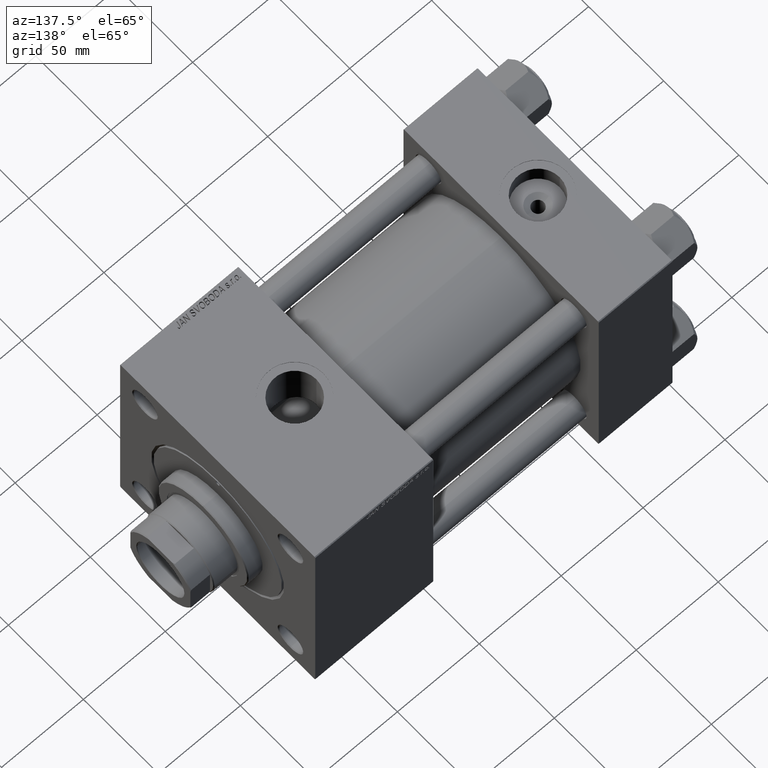
[diagram: clean part render]
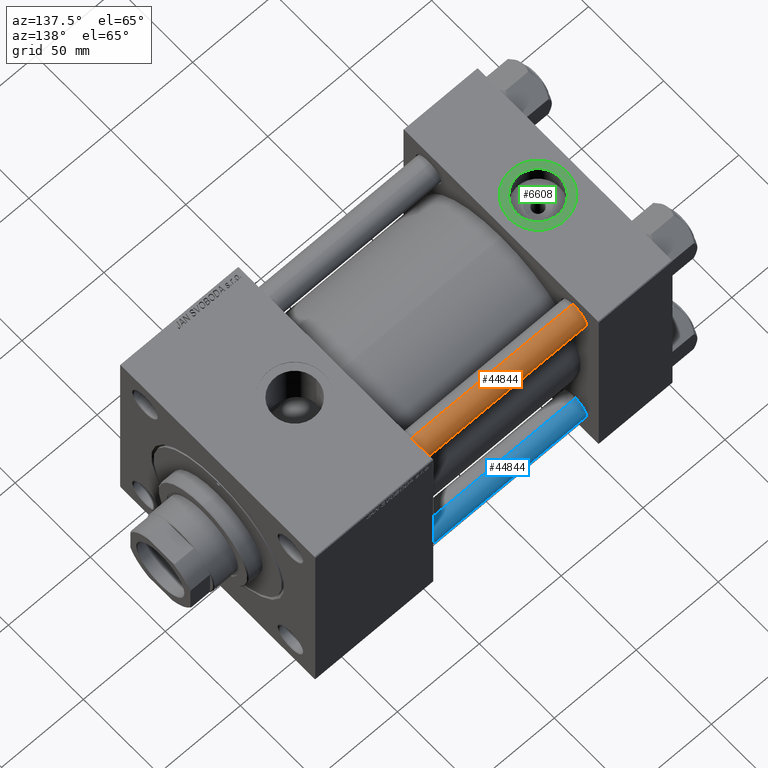
[diagram: same view with three faces highlighted in distinct colors, each labeled with its STEP entity id]
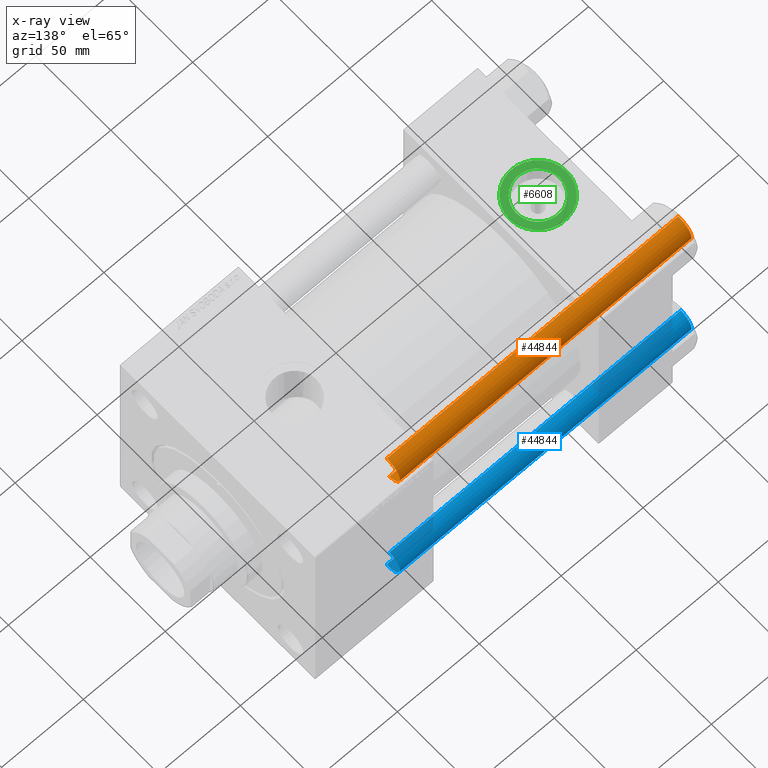
[diagram: x-ray of the same camera — body ghosted, the three highlighted faces saturated]
A machine part, auxiliary view with three faces highlighted in distinct colors.
The next image is the same camera in x-ray (body ghosted, the three faces saturated) — at least one of them is partly hidden behind the body in this view.
Their STEP definitions:

[orange] entity #44844 — the highlighted cylindrical surface (edge-blend (fillet) strip) has radius 8 mm, axis along (-1, 0, 0).
#3326 = DIRECTION ( 'NONE',  ( -0.000000000000000000, -0.000000000000000000, -1.000000000000000000 ) ) ;
#3579 = DIRECTION ( 'NONE',  ( -1.000000000000000000, 0.000000000000000000, 0.000000000000000000 ) ) ;
#6770 = CARTESIAN_POINT ( 'NONE',  ( -8.000000000000000000, 0.000000000000000000, 179.0000000000000000 ) ) ;
#7080 = VERTEX_POINT ( 'NONE', #41293 ) ;
#8941 = VERTEX_POINT ( 'NONE', #50670 ) ;
#10639 = LINE ( 'NONE', #6770, #21635 ) ;
#10958 = CIRCLE ( 'NONE', #18324, 8.000000000000000000 ) ;
#11604 = EDGE_CURVE ( 'NONE', #16857, #7080, #10958, .T. ) ;
#12505 = DIRECTION ( 'NONE',  ( -0.000000000000000000, -0.000000000000000000, 1.000000000000000000 ) ) ;
#12895 = CARTESIAN_POINT ( 'NONE',  ( 8.000000000000000000, 9.797174393178823685E-16, 179.0000000000000000 ) ) ;
#16121 = VECTOR ( 'NONE', #16494, 1000.000000000000000 ) ;
#16494 = DIRECTION ( 'NONE',  ( -0.000000000000000000, -0.000000000000000000, -1.000000000000000000 ) ) ;
#16857 = VERTEX_POINT ( 'NONE', #45170 ) ;
#18324 = AXIS2_PLACEMENT_3D ( 'NONE', #44282, #28587, #40162 ) ;
#18875 = EDGE_CURVE ( 'NONE', #8941, #27733, #49738, .T. ) ;
#19586 = EDGE_CURVE ( 'NONE', #7080, #8941, #48102, .T. ) ;
#21635 = VECTOR ( 'NONE', #38120, 1000.000000000000000 ) ;
#22993 = EDGE_LOOP ( 'NONE', ( #48178, #38166, #39535, #31892 ) ) ;
#23092 = FACE_OUTER_BOUND ( 'NONE', #22993, .T. ) ;
#27660 = DIRECTION ( 'NONE',  ( 1.000000000000000000, 0.000000000000000000, 0.000000000000000000 ) ) ;
#27733 = VERTEX_POINT ( 'NONE', #32492 ) ;
#28587 = DIRECTION ( 'NONE',  ( 0.000000000000000000, 0.000000000000000000, -1.000000000000000000 ) ) ;
#31372 = EDGE_CURVE ( 'NONE', #16857, #27733, #10639, .T. ) ;
#31892 = ORIENTED_EDGE ( 'NONE', *, *, #31372, .F. ) ;
#32492 = CARTESIAN_POINT ( 'NONE',  ( -8.000000000000000000, 0.000000000000000000, 0.5000000000001392220 ) ) ;
#38120 = DIRECTION ( 'NONE',  ( -0.000000000000000000, -0.000000000000000000, -1.000000000000000000 ) ) ;
#38166 = ORIENTED_EDGE ( 'NONE', *, *, #19586, .T. ) ;
#39285 = CYLINDRICAL_SURFACE ( 'NONE', #41655, 8.000000000000000000 ) ;
#39535 = ORIENTED_EDGE ( 'NONE', *, *, #18875, .T. ) ;
#40162 = DIRECTION ( 'NONE',  ( 1.000000000000000000, 0.000000000000000000, 0.000000000000000000 ) ) ;
#41293 = CARTESIAN_POINT ( 'NONE',  ( 8.000000000000000000, 9.797174393178823685E-16, 178.5000000000001137 ) ) ;
#41655 = AXIS2_PLACEMENT_3D ( 'NONE', #47261, #3326, #3579 ) ;
#44282 = CARTESIAN_POINT ( 'NONE',  ( 0.000000000000000000, 0.000000000000000000, 178.5000000000001137 ) ) ;
#44817 = AXIS2_PLACEMENT_3D ( 'NONE', #47718, #12505, #27660 ) ;
#44844 = ADVANCED_FACE ( 'NONE', ( #23092 ), #39285, .T. ) ;
#45170 = CARTESIAN_POINT ( 'NONE',  ( -8.000000000000000000, 0.000000000000000000, 178.5000000000001137 ) ) ;
#47261 = CARTESIAN_POINT ( 'NONE',  ( 0.000000000000000000, 0.000000000000000000, 179.0000000000000000 ) ) ;
#47718 = CARTESIAN_POINT ( 'NONE',  ( 0.000000000000000000, 0.000000000000000000, 0.5000000000001392220 ) ) ;
#48102 = LINE ( 'NONE', #12895, #16121 ) ;
#48178 = ORIENTED_EDGE ( 'NONE', *, *, #11604, .T. ) ;
#49738 = CIRCLE ( 'NONE', #44817, 8.000000000000000000 ) ;
#50670 = CARTESIAN_POINT ( 'NONE',  ( 8.000000000000000000, 9.797174393178823685E-16, 0.5000000000001392220 ) ) ;

[blue] entity #44844 — the highlighted cylindrical surface (edge-blend (fillet) strip) has radius 8 mm, axis along (1, -0, 0).
#3326 = DIRECTION ( 'NONE',  ( -0.000000000000000000, -0.000000000000000000, -1.000000000000000000 ) ) ;
#3579 = DIRECTION ( 'NONE',  ( -1.000000000000000000, 0.000000000000000000, 0.000000000000000000 ) ) ;
#6770 = CARTESIAN_POINT ( 'NONE',  ( -8.000000000000000000, 0.000000000000000000, 179.0000000000000000 ) ) ;
#7080 = VERTEX_POINT ( 'NONE', #41293 ) ;
#8941 = VERTEX_POINT ( 'NONE', #50670 ) ;
#10639 = LINE ( 'NONE', #6770, #21635 ) ;
#10958 = CIRCLE ( 'NONE', #18324, 8.000000000000000000 ) ;
#11604 = EDGE_CURVE ( 'NONE', #16857, #7080, #10958, .T. ) ;
#12505 = DIRECTION ( 'NONE',  ( -0.000000000000000000, -0.000000000000000000, 1.000000000000000000 ) ) ;
#12895 = CARTESIAN_POINT ( 'NONE',  ( 8.000000000000000000, 9.797174393178823685E-16, 179.0000000000000000 ) ) ;
#16121 = VECTOR ( 'NONE', #16494, 1000.000000000000000 ) ;
#16494 = DIRECTION ( 'NONE',  ( -0.000000000000000000, -0.000000000000000000, -1.000000000000000000 ) ) ;
#16857 = VERTEX_POINT ( 'NONE', #45170 ) ;
#18324 = AXIS2_PLACEMENT_3D ( 'NONE', #44282, #28587, #40162 ) ;
#18875 = EDGE_CURVE ( 'NONE', #8941, #27733, #49738, .T. ) ;
#19586 = EDGE_CURVE ( 'NONE', #7080, #8941, #48102, .T. ) ;
#21635 = VECTOR ( 'NONE', #38120, 1000.000000000000000 ) ;
#22993 = EDGE_LOOP ( 'NONE', ( #48178, #38166, #39535, #31892 ) ) ;
#23092 = FACE_OUTER_BOUND ( 'NONE', #22993, .T. ) ;
#27660 = DIRECTION ( 'NONE',  ( 1.000000000000000000, 0.000000000000000000, 0.000000000000000000 ) ) ;
#27733 = VERTEX_POINT ( 'NONE', #32492 ) ;
#28587 = DIRECTION ( 'NONE',  ( 0.000000000000000000, 0.000000000000000000, -1.000000000000000000 ) ) ;
#31372 = EDGE_CURVE ( 'NONE', #16857, #27733, #10639, .T. ) ;
#31892 = ORIENTED_EDGE ( 'NONE', *, *, #31372, .F. ) ;
#32492 = CARTESIAN_POINT ( 'NONE',  ( -8.000000000000000000, 0.000000000000000000, 0.5000000000001392220 ) ) ;
#38120 = DIRECTION ( 'NONE',  ( -0.000000000000000000, -0.000000000000000000, -1.000000000000000000 ) ) ;
#38166 = ORIENTED_EDGE ( 'NONE', *, *, #19586, .T. ) ;
#39285 = CYLINDRICAL_SURFACE ( 'NONE', #41655, 8.000000000000000000 ) ;
#39535 = ORIENTED_EDGE ( 'NONE', *, *, #18875, .T. ) ;
#40162 = DIRECTION ( 'NONE',  ( 1.000000000000000000, 0.000000000000000000, 0.000000000000000000 ) ) ;
#41293 = CARTESIAN_POINT ( 'NONE',  ( 8.000000000000000000, 9.797174393178823685E-16, 178.5000000000001137 ) ) ;
#41655 = AXIS2_PLACEMENT_3D ( 'NONE', #47261, #3326, #3579 ) ;
#44282 = CARTESIAN_POINT ( 'NONE',  ( 0.000000000000000000, 0.000000000000000000, 178.5000000000001137 ) ) ;
#44817 = AXIS2_PLACEMENT_3D ( 'NONE', #47718, #12505, #27660 ) ;
#44844 = ADVANCED_FACE ( 'NONE', ( #23092 ), #39285, .T. ) ;
#45170 = CARTESIAN_POINT ( 'NONE',  ( -8.000000000000000000, 0.000000000000000000, 178.5000000000001137 ) ) ;
#47261 = CARTESIAN_POINT ( 'NONE',  ( 0.000000000000000000, 0.000000000000000000, 179.0000000000000000 ) ) ;
#47718 = CARTESIAN_POINT ( 'NONE',  ( 0.000000000000000000, 0.000000000000000000, 0.5000000000001392220 ) ) ;
#48102 = LINE ( 'NONE', #12895, #16121 ) ;
#48178 = ORIENTED_EDGE ( 'NONE', *, *, #11604, .T. ) ;
#49738 = CIRCLE ( 'NONE', #44817, 8.000000000000000000 ) ;
#50670 = CARTESIAN_POINT ( 'NONE',  ( 8.000000000000000000, 9.797174393178823685E-16, 0.5000000000001392220 ) ) ;

[green] entity #6608 — the highlighted planar face has unit normal (0, 0, 1).
#1198 = CARTESIAN_POINT ( 'NONE',  ( 22.50000000000000000, -8.673617379884035472E-15, 64.79999999999999716 ) ) ;
#2472 = DIRECTION ( 'NONE',  ( 1.000000000000000000, 0.000000000000000000, 0.000000000000000000 ) ) ;
#3124 = FACE_BOUND ( 'NONE', #44763, .T. ) ;
#3351 = DIRECTION ( 'NONE',  ( 1.000000000000000000, 0.000000000000000000, 0.000000000000000000 ) ) ;
#5161 = CIRCLE ( 'NONE', #48668, 17.50000000000000000 ) ;
#6608 = ADVANCED_FACE ( 'NONE', ( #3124, #30839 ), #7478, .T. ) ;
#7074 = DIRECTION ( 'NONE',  ( 0.000000000000000000, 0.000000000000000000, 1.000000000000000000 ) ) ;
#7279 = EDGE_CURVE ( 'NONE', #32658, #38987, #33765, .T. ) ;
#7478 = PLANE ( 'NONE',  #26313 ) ;
#9462 = ORIENTED_EDGE ( 'NONE', *, *, #22361, .T. ) ;
#10519 = EDGE_CURVE ( 'NONE', #19571, #30869, #5161, .T. ) ;
#11325 = CARTESIAN_POINT ( 'NONE',  ( 35.71999999999999886, -8.673617379884035472E-15, 64.79999999999999716 ) ) ;
#11635 = ORIENTED_EDGE ( 'NONE', *, *, #41030, .F. ) ;
#13011 = DIRECTION ( 'NONE',  ( 0.000000000000000000, 0.000000000000000000, 1.000000000000000000 ) ) ;
#13269 = AXIS2_PLACEMENT_3D ( 'NONE', #42806, #26115, #15566 ) ;
#14917 = CARTESIAN_POINT ( 'NONE',  ( 22.50000000000000000, -8.673617379884035472E-15, 64.79999999999999716 ) ) ;
#15170 = DIRECTION ( 'NONE',  ( 0.000000000000000000, 0.000000000000000000, 1.000000000000000000 ) ) ;
#15566 = DIRECTION ( 'NONE',  ( 1.000000000000000000, 0.000000000000000000, 0.000000000000000000 ) ) ;
#16102 = ORIENTED_EDGE ( 'NONE', *, *, #10519, .T. ) ;
#18658 = AXIS2_PLACEMENT_3D ( 'NONE', #37667, #7074, #2472 ) ;
#18792 = CARTESIAN_POINT ( 'NONE',  ( 22.50000000000000000, -8.673617379884035472E-15, 64.79999999999999716 ) ) ;
#19571 = VERTEX_POINT ( 'NONE', #24440 ) ;
#22361 = EDGE_CURVE ( 'NONE', #30869, #19571, #30050, .T. ) ;
#22760 = CIRCLE ( 'NONE', #18658, 13.22000000000000242 ) ;
#24285 = AXIS2_PLACEMENT_3D ( 'NONE', #14917, #15170, #3351 ) ;
#24440 = CARTESIAN_POINT ( 'NONE',  ( 40.00000000000000000, -8.673617379884035472E-15, 64.79999999999999716 ) ) ;
#26115 = DIRECTION ( 'NONE',  ( 0.000000000000000000, 0.000000000000000000, 1.000000000000000000 ) ) ;
#26313 = AXIS2_PLACEMENT_3D ( 'NONE', #18792, #34445, #50145 ) ;
#30050 = CIRCLE ( 'NONE', #24285, 17.50000000000000000 ) ;
#30839 = FACE_OUTER_BOUND ( 'NONE', #35171, .T. ) ;
#30869 = VERTEX_POINT ( 'NONE', #47800 ) ;
#32658 = VERTEX_POINT ( 'NONE', #40731 ) ;
#33765 = CIRCLE ( 'NONE', #13269, 13.22000000000000242 ) ;
#34445 = DIRECTION ( 'NONE',  ( 0.000000000000000000, 0.000000000000000000, 1.000000000000000000 ) ) ;
#35171 = EDGE_LOOP ( 'NONE', ( #16102, #9462 ) ) ;
#37667 = CARTESIAN_POINT ( 'NONE',  ( 22.50000000000000000, -8.673617379884035472E-15, 64.79999999999999716 ) ) ;
#38987 = VERTEX_POINT ( 'NONE', #11325 ) ;
#40731 = CARTESIAN_POINT ( 'NONE',  ( 9.279999999999994031, -7.054634311411234321E-15, 64.79999999999999716 ) ) ;
#41030 = EDGE_CURVE ( 'NONE', #38987, #32658, #22760, .T. ) ;
#42806 = CARTESIAN_POINT ( 'NONE',  ( 22.50000000000000000, -8.673617379884035472E-15, 64.79999999999999716 ) ) ;
#44763 = EDGE_LOOP ( 'NONE', ( #11635, #46989 ) ) ;
#46989 = ORIENTED_EDGE ( 'NONE', *, *, #7279, .F. ) ;
#47800 = CARTESIAN_POINT ( 'NONE',  ( 4.999999999999997335, -6.530485481376167224E-15, 64.79999999999999716 ) ) ;
#47962 = DIRECTION ( 'NONE',  ( 1.000000000000000000, 0.000000000000000000, 0.000000000000000000 ) ) ;
#48668 = AXIS2_PLACEMENT_3D ( 'NONE', #1198, #13011, #47962 ) ;
#50145 = DIRECTION ( 'NONE',  ( 1.000000000000000000, 0.000000000000000000, -0.000000000000000000 ) ) ;